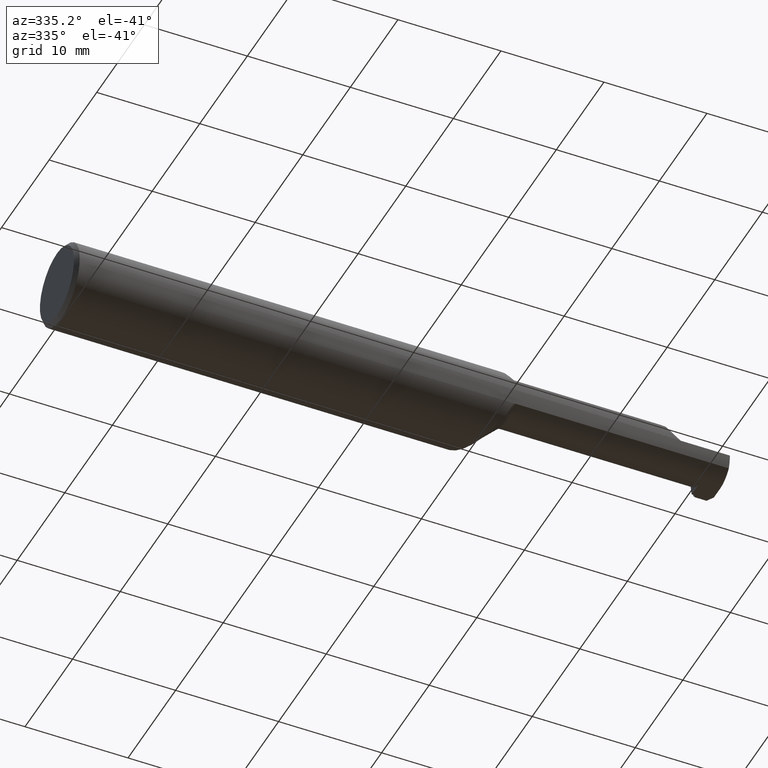
[diagram: clean part render]
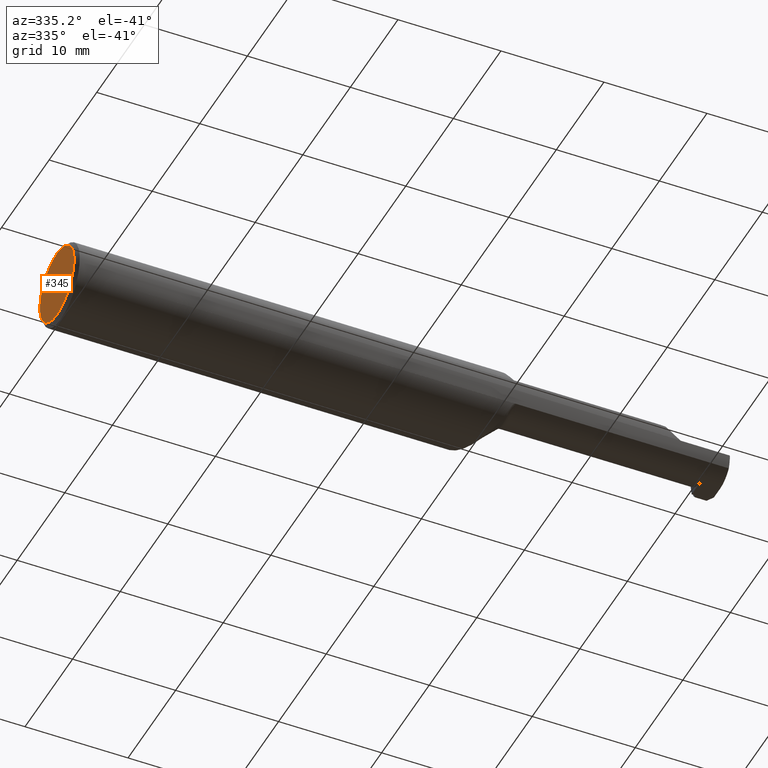
[diagram: same view with one face highlighted and labeled with its STEP entity id]
A machine part, auxiliary view. The second image highlights one B-rep face of the part: STEP entity #345.
In plain terms, the highlighted planar face has unit normal (1, 0, 0).
Its self-contained STEP definition (entity closure, byte-faithful):
#55 = DIRECTION ( 'NONE',  ( 0.000000000000000000, 0.000000000000000000, -1.000000000000000000 ) ) ;
#81 = DIRECTION ( 'NONE',  ( 1.000000000000000000, 0.000000000000000000, 0.000000000000000000 ) ) ;
#96 = AXIS2_PLACEMENT_3D ( 'NONE', #317, #954, #55 ) ;
#231 = EDGE_CURVE ( 'NONE', #802, #880, #523, .T. ) ;
#233 = ORIENTED_EDGE ( 'NONE', *, *, #600, .T. ) ;
#245 = CARTESIAN_POINT ( 'NONE',  ( 0.000000000000000000, 0.000000000000000000, 0.000000000000000000 ) ) ;
#317 = CARTESIAN_POINT ( 'NONE',  ( 0.000000000000000000, 0.000000000000000000, 0.000000000000000000 ) ) ;
#345 = ADVANCED_FACE ( 'NONE', ( #889 ), #909, .F. ) ;
#376 = DIRECTION ( 'NONE',  ( -1.000000000000000000, -0.000000000000000000, -0.000000000000000000 ) ) ;
#410 = ORIENTED_EDGE ( 'NONE', *, *, #231, .T. ) ;
#430 = EDGE_LOOP ( 'NONE', ( #410, #233 ) ) ;
#503 = CARTESIAN_POINT ( 'NONE',  ( 0.000000000000000000, 1.819825143532983112E-17, 0.1411000000000000310 ) ) ;
#504 = DIRECTION ( 'NONE',  ( 0.000000000000000000, 0.000000000000000000, -1.000000000000000000 ) ) ;
#523 = CIRCLE ( 'NONE', #96, 0.1411000000000000310 ) ;
#600 = EDGE_CURVE ( 'NONE', #880, #802, #896, .T. ) ;
#638 = CARTESIAN_POINT ( 'NONE',  ( 0.000000000000000000, 0.000000000000000000, 0.000000000000000000 ) ) ;
#743 = CARTESIAN_POINT ( 'NONE',  ( 0.000000000000000000, 0.000000000000000000, -0.1411000000000000310 ) ) ;
#794 = DIRECTION ( 'NONE',  ( 0.000000000000000000, 0.000000000000000000, -1.000000000000000000 ) ) ;
#799 = AXIS2_PLACEMENT_3D ( 'NONE', #245, #81, #504 ) ;
#802 = VERTEX_POINT ( 'NONE', #743 ) ;
#863 = AXIS2_PLACEMENT_3D ( 'NONE', #638, #376, #794 ) ;
#880 = VERTEX_POINT ( 'NONE', #503 ) ;
#889 = FACE_OUTER_BOUND ( 'NONE', #430, .T. ) ;
#896 = CIRCLE ( 'NONE', #863, 0.1411000000000000310 ) ;
#909 = PLANE ( 'NONE',  #799 ) ;
#954 = DIRECTION ( 'NONE',  ( -1.000000000000000000, -0.000000000000000000, -0.000000000000000000 ) ) ;